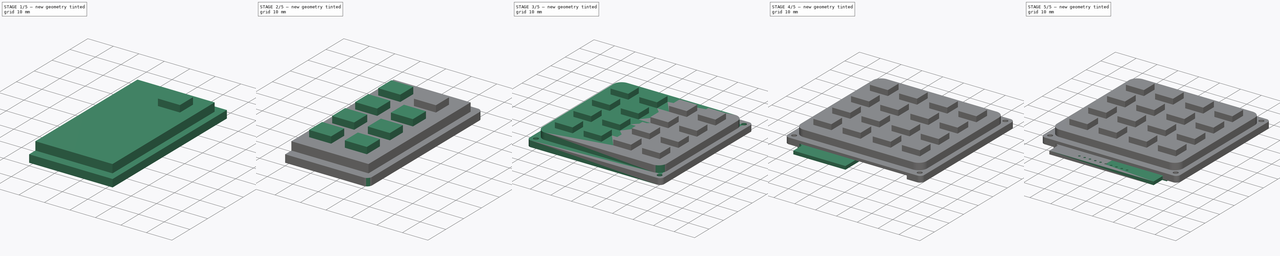
[diagram: build sequence overview — one tinted view per stage of 5, left to right]
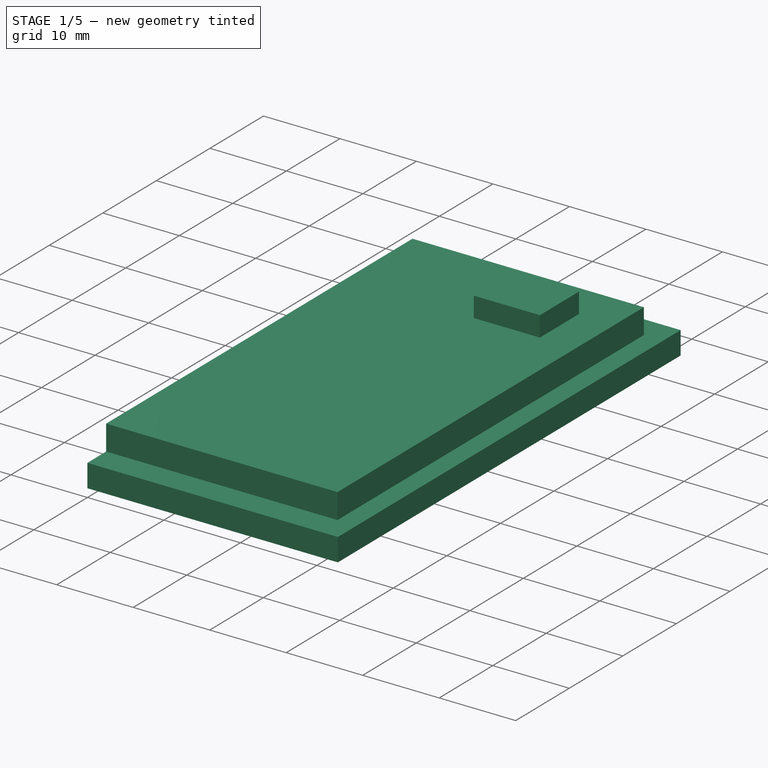
[diagram: stage 1 of 5 — iso view after this stage's code; geometry added in this stage tinted green]
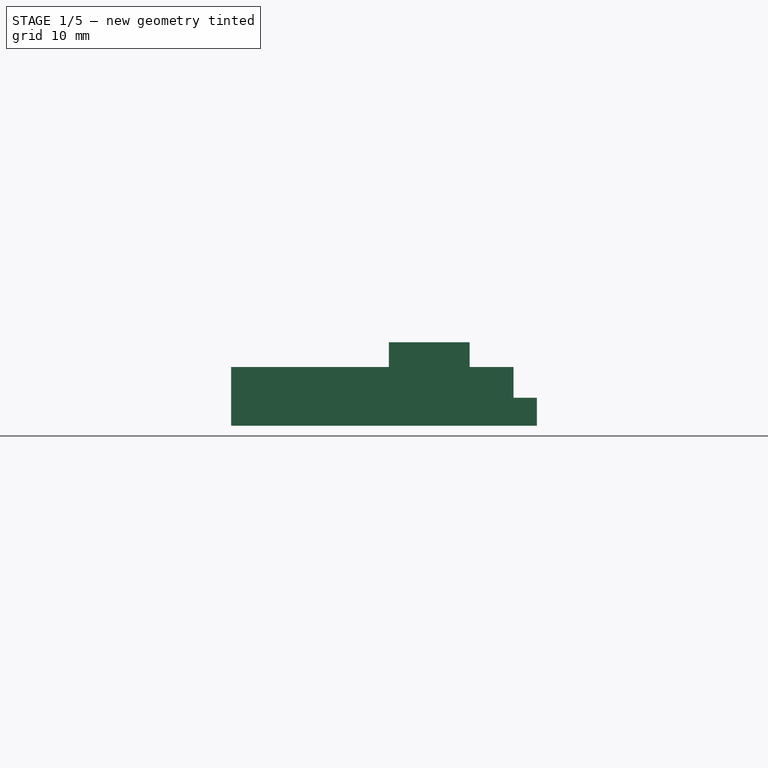
[diagram: stage 1 of 5 — front view after this stage's code; geometry added in this stage tinted green]
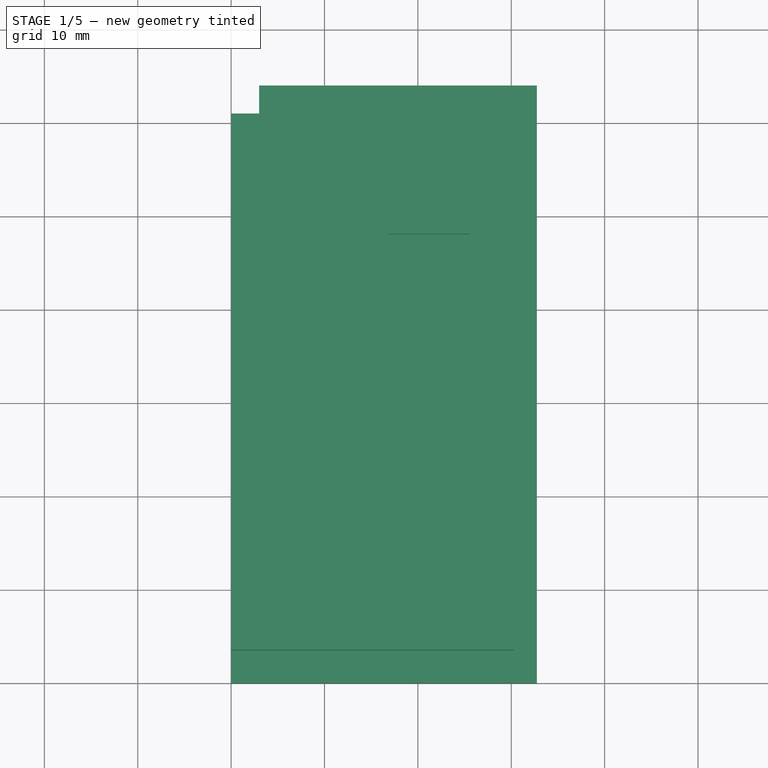
[diagram: stage 1 of 5 — top view after this stage's code; geometry added in this stage tinted green]
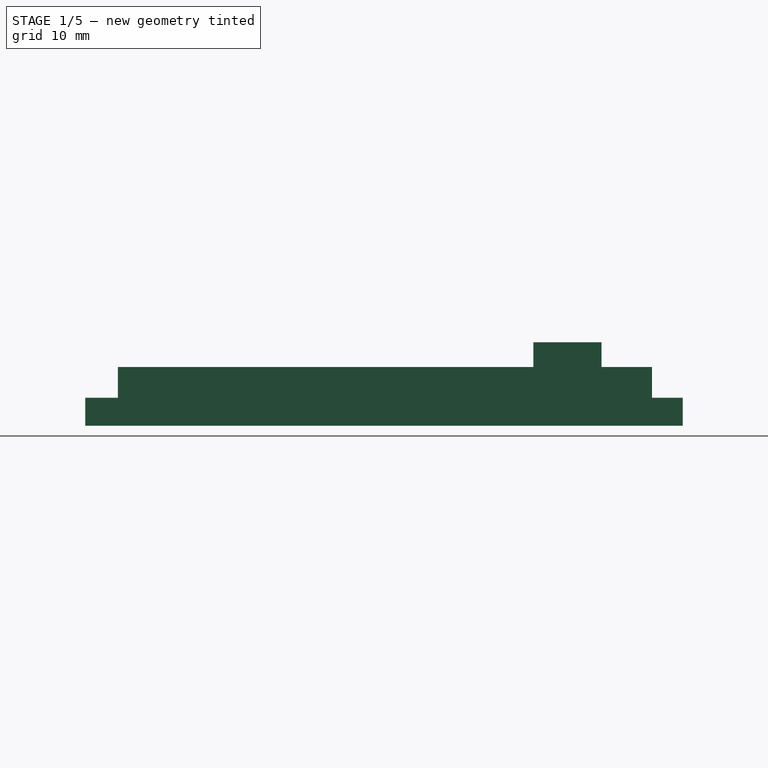
[diagram: stage 1 of 5 — right view after this stage's code; geometry added in this stage tinted green]
FCSTD DOCUMENT  (FreeCAD 1.0R39285 (Git))
Label: keypad
License: All rights reserved
LicenseURL: http://en.wikipedia.org/wiki/All_rights_reserved
objects: Sketcher::SketchObject×7, PartDesign::Pad×4, PartDesign::Fillet×4, PartDesign::LinearPattern×3, PartDesign::Pocket×3, PartDesign::Mirrored×2, PartDesign::Body×2, PartDesign::MultiTransform×1, App::Part×1
note: 61 computed .brp shape members not serialized (recipe doc carries the construction recipe); baked Part::Feature solids carry a one-line shape summary decoded from their .brp

FEATURE [Sketcher::SketchObject] Sketch
  ArcFitTolerance = 1e-06
  AttachmentSupport = -> [XY_Plane]
  FullyConstrained = true
  MakeInternals = false
  MapMode = 5
  sketch-geometry (6):
    g0: LineSegment StartX=0 StartY=0 StartZ=0 EndX=32.75 EndY=0 EndZ=0
    g1: LineSegment StartX=32.75 StartY=0 StartZ=0 EndX=32.75 EndY=64 EndZ=0
    g2: LineSegment StartX=32.75 StartY=64 StartZ=0 EndX=3 EndY=64 EndZ=0
    g3: LineSegment StartX=0 StartY=0 StartZ=0 EndX=0 EndY=61 EndZ=0
    g4: LineSegment StartX=0 StartY=61 StartZ=0 EndX=3 EndY=61 EndZ=0
    g5: LineSegment StartX=3 StartY=61 StartZ=0 EndX=3 EndY=64 EndZ=0
  constraints (17):
    c: Coincident(g0,g1)
    c: Coincident(g1,g2)
    c: Horizontal(g0)
    c: Horizontal(g2)
    c: Vertical(g1)
    c: Coincident(g0,g-1)
    c: DistanceX(g0,g0) = 32.75
    c: Coincident(g3,g0)
    c: PointOnObject(g3,g-2)
    c: Coincident(g4,g3)
    c: Horizontal(g4)
    c: Coincident(g5,g4)
    c: Vertical(g5)
    c: Coincident(g2,g5)
    c: DistanceY(g0,g1) = 64
    c: DistanceY(g5,g5) = 3
    c: DistanceX(g4,g4) = 3
FEATURE [PartDesign::Pad] Pad
  Direction = (0,0,1)
  Length = 3
  Length2 = 10
  Profile = -> Sketch
  ReferenceAxis = -> Sketch [N_Axis]
  Refine = true
  Suppressed = false
  Type = 0
FEATURE [Sketcher::SketchObject] Sketch001
  ArcFitTolerance = 1e-06
  AttachmentSupport = -> [Pad]
  ExternalGeometry = -> [Pad]
  FullyConstrained = true
  MakeInternals = false
  MapMode = 5
  Placement = pos=(0,0,3) rot=(0,0,1;0rad)
  sketch-geometry (2):
    g0: Circle CenterX=30.1 CenterY=61.35 CenterZ=0 NormalX=0 NormalY=0 NormalZ=1 AngleXU=0 Radius=1.15
    g1: Circle CenterX=30.1 CenterY=2.65 CenterZ=0 NormalX=0 NormalY=0 NormalZ=1 AngleXU=0 Radius=1.15
  constraints (6):
    c: Diameter(g0) = 2.3
    c: Equal(g0,g1)
    c: Distance(g0,g-4) = 1.5
    c: Distance(g0,g-3) = 1.5
    c: Distance(g1,g-5) = 1.5
    c: Distance(g1,g-4) = 1.5
FEATURE [Sketcher::SketchObject] Sketch003
  ArcFitTolerance = 1e-06
  AttachmentSupport = -> [Pad]
  ExternalGeometry = -> [Pad]
  FullyConstrained = true
  MakeInternals = false
  MapMode = 5
  Placement = pos=(0,0,3) rot=(0,0,1;0rad)
  sketch-geometry (4):
    g0: LineSegment StartX=0 StartY=3.5 StartZ=0 EndX=30.25 EndY=3.5 EndZ=0
    g1: LineSegment StartX=30.25 StartY=3.5 StartZ=0 EndX=30.25 EndY=60.7 EndZ=0
    g2: LineSegment StartX=30.25 StartY=60.7 StartZ=0 EndX=0 EndY=60.7 EndZ=0
    g3: LineSegment StartX=0 StartY=60.7 StartZ=0 EndX=0 EndY=3.5 EndZ=0
  constraints (12):
    c: Coincident(g0,g1)
    c: Coincident(g1,g2)
    c: Coincident(g2,g3)
    c: Coincident(g3,g0)
    c: Horizontal(g0)
    c: Horizontal(g2)
    c: Vertical(g1)
    c: Vertical(g3)
    c: PointOnObject(g0,g-2)
    c: DistanceY(g1,g-4) = 3.3
    c: DistanceX(g1,g-4) = 2.5
    c: DistanceY(g-5,g0) = 3.5
FEATURE [PartDesign::Pad] Pad001
  BaseFeature = -> Pad
  Direction = (0,0,1)
  Length = 3.3
  Length2 = 10
  Profile = -> Sketch003
  ReferenceAxis = -> Sketch003 [N_Axis]
  Refine = true
  Suppressed = false
  Type = 0
FEATURE [Sketcher::SketchObject] Sketch004
  ArcFitTolerance = 1e-06
  AttachmentSupport = -> [Pad001]
  ExternalGeometry = -> [Pad001]
  FullyConstrained = true
  MakeInternals = false
  MapMode = 5
  Placement = pos=(0,0,6.3) rot=(0,0,1;0rad)
  sketch-geometry (4):
    g0: LineSegment StartX=16.9 StartY=55.3 StartZ=0 EndX=16.9 EndY=48 EndZ=0
    g1: LineSegment StartX=16.9 StartY=48 StartZ=0 EndX=25.55 EndY=48 EndZ=0
    g2: LineSegment StartX=25.55 StartY=48 StartZ=0 EndX=25.55 EndY=55.3 EndZ=0
    g3: LineSegment StartX=25.55 StartY=55.3 StartZ=0 EndX=16.9 EndY=55.3 EndZ=0
  constraints (12):
    c: Coincident(g0,g1)
    c: Coincident(g1,g2)
    c: Coincident(g2,g3)
    c: Coincident(g3,g0)
    c: Vertical(g0)
    c: Vertical(g2)
    c: Horizontal(g1)
    c: Horizontal(g3)
    c: DistanceX(g3,g3) = 8.65
    c: DistanceY(g2,g2) = 7.3
    c: DistanceX(g2,g-4) = 4.7
    c: DistanceY(g2,g-4) = 5.4
FEATURE [PartDesign::Pad] Pad002
  BaseFeature = -> Pad001
  Direction = (0,0,1)
  Length = 2.65
  Length2 = 10
  Profile = -> Sketch004
  ReferenceAxis = -> Sketch004 [N_Axis]
  Refine = true
  Suppressed = false
  Type = 0
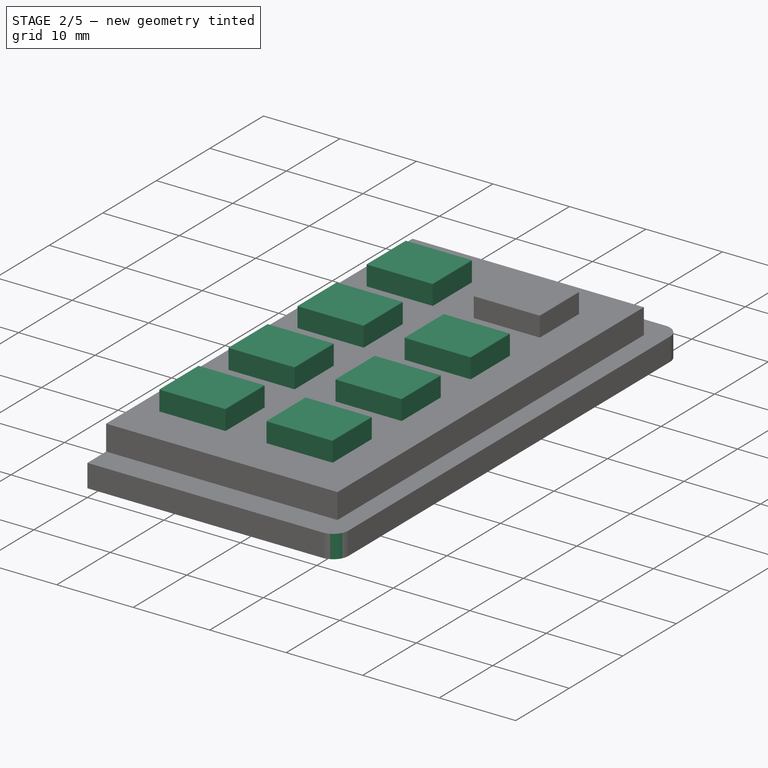
[diagram: stage 2 of 5 — iso view after this stage's code; geometry added in this stage tinted green]
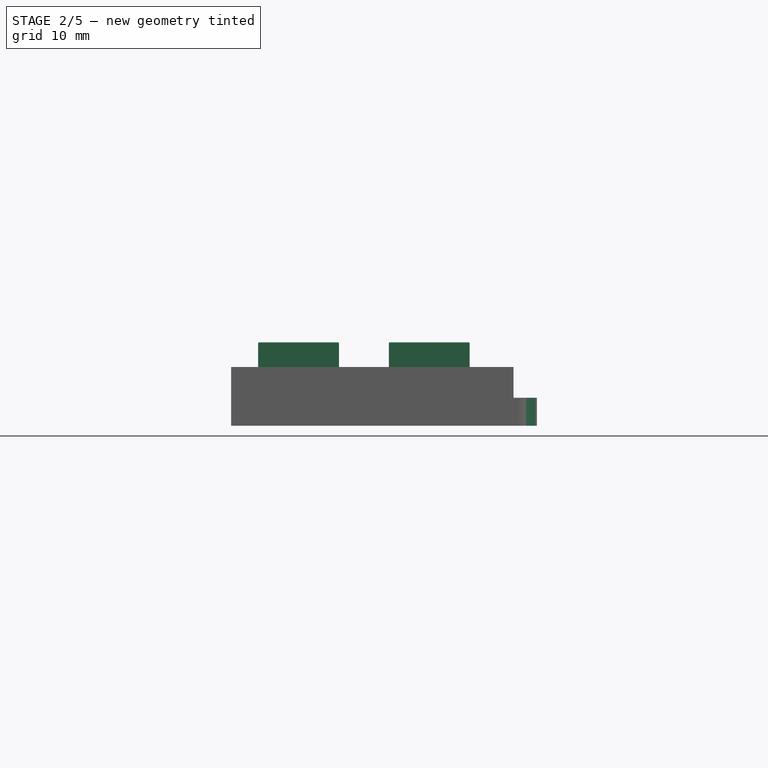
[diagram: stage 2 of 5 — front view after this stage's code; geometry added in this stage tinted green]
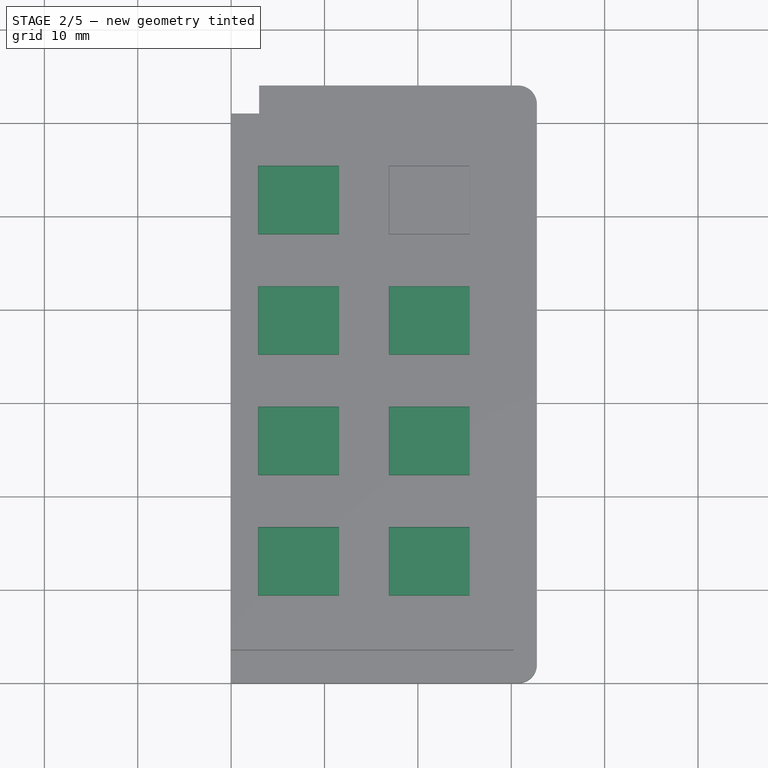
[diagram: stage 2 of 5 — top view after this stage's code; geometry added in this stage tinted green]
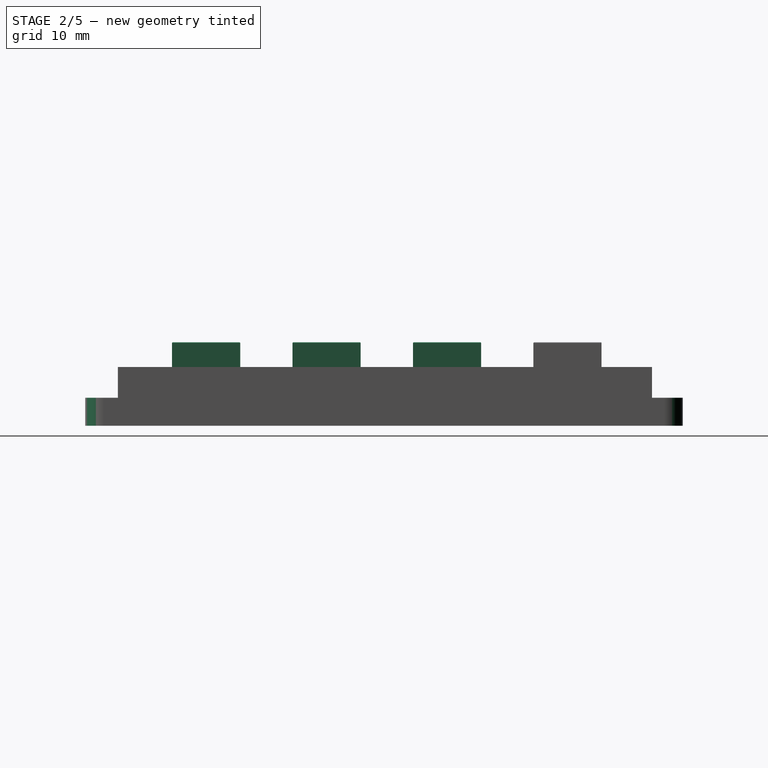
[diagram: stage 2 of 5 — right view after this stage's code; geometry added in this stage tinted green]
FEATURE [PartDesign::Body] Body001  label="pcb"
  AllowCompound = false
  Group = -> [Sketch006,Pad003,Mirrored001,Sketch007,Pocket002,LinearPattern002]
  Origin = -> Origin001
  Tip = -> LinearPattern002
FEATURE [PartDesign::Fillet] Fillet002
  Base = -> Pad002 [Edge37,Edge39,Edge42,Edge41]
  BaseFeature = -> Pad002
  Radius = 0.1
  Refine = true
  SupportTransform = false
  Suppressed = false
  UseAllEdges = false
FEATURE [PartDesign::MultiTransform] MultiTransform
  BaseFeature = -> Fillet002
  Originals = -> [Pad002,Fillet002]
  Refine = true
  Suppressed = false
  TransformMode = 0
  Transformations = -> [LinearPattern,LinearPattern001]
FEATURE [PartDesign::Fillet] Fillet
  Base = -> MultiTransform [Edge190,Edge126]
  BaseFeature = -> MultiTransform
  Radius = 2
  Refine = true
  SupportTransform = false
  Suppressed = false
  UseAllEdges = false
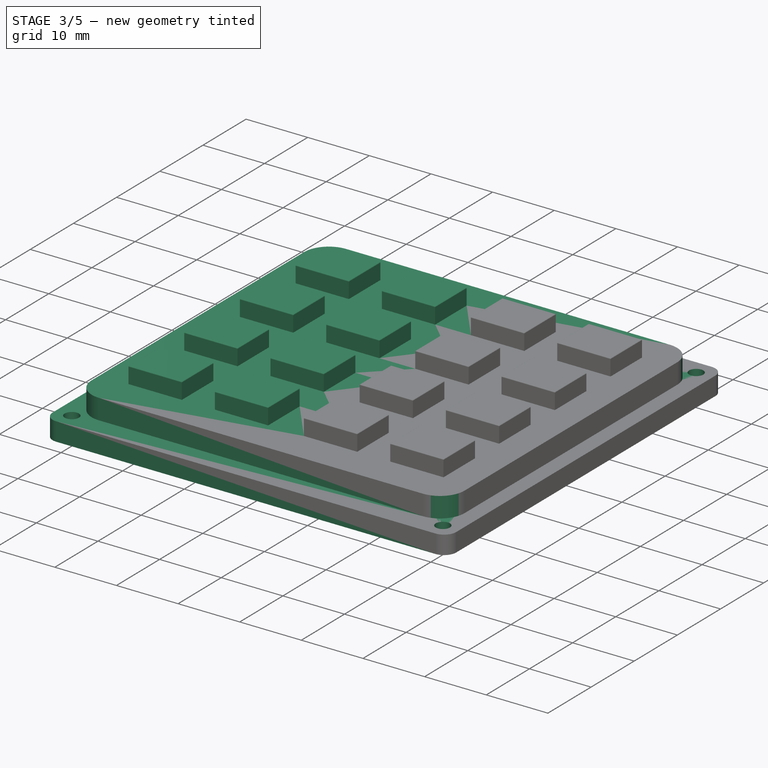
[diagram: stage 3 of 5 — iso view after this stage's code; geometry added in this stage tinted green]
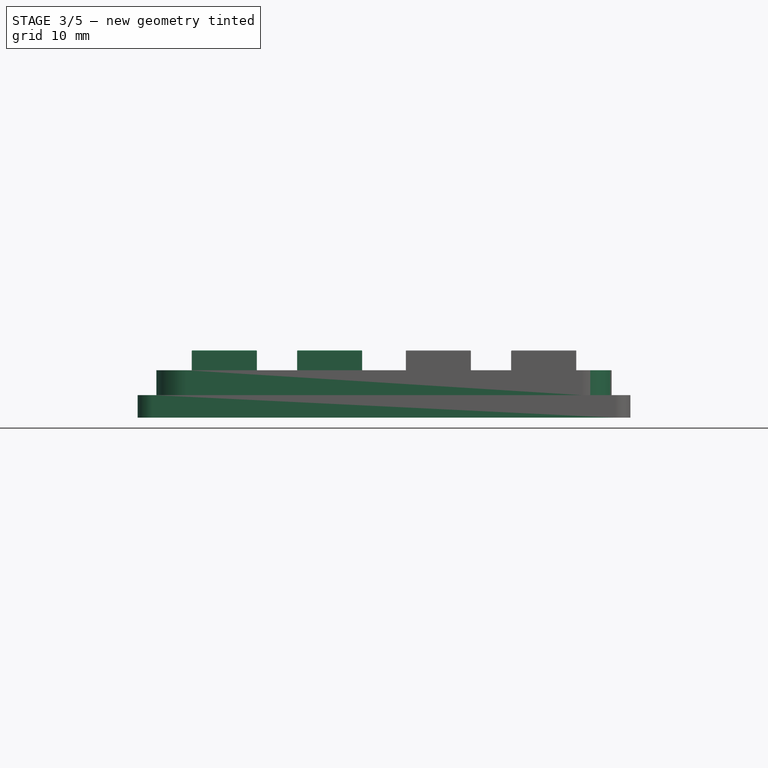
[diagram: stage 3 of 5 — front view after this stage's code; geometry added in this stage tinted green]
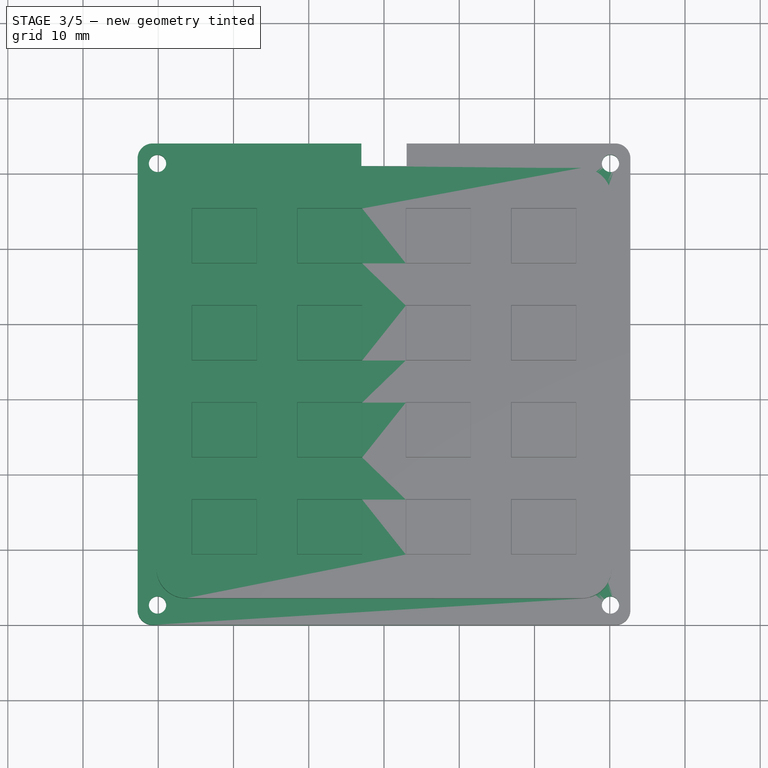
[diagram: stage 3 of 5 — top view after this stage's code; geometry added in this stage tinted green]
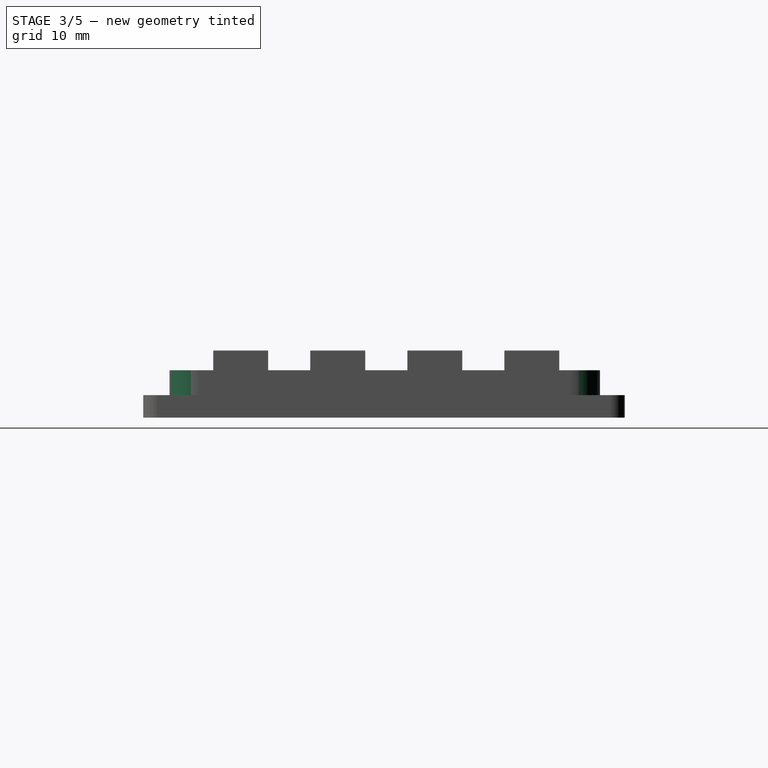
[diagram: stage 3 of 5 — right view after this stage's code; geometry added in this stage tinted green]
FEATURE [PartDesign::Fillet] Fillet001
  Base = -> Fillet [Edge32,Edge34]
  BaseFeature = -> Fillet
  Radius = 4
  Refine = true
  SupportTransform = false
  Suppressed = false
  UseAllEdges = false
FEATURE [PartDesign::Pocket] Pocket
  BaseFeature = -> Fillet001
  Direction = (0,0,-1)
  Length = 3
  Length2 = 5
  Profile = -> Sketch001
  ReferenceAxis = -> Sketch001 [N_Axis]
  Refine = true
  Suppressed = false
  Type = 0
FEATURE [PartDesign::Mirrored] Mirrored
  BaseFeature = -> Pocket
  MirrorPlane = -> YZ_Plane
  Refine = true
  Suppressed = false
  TransformMode = 1
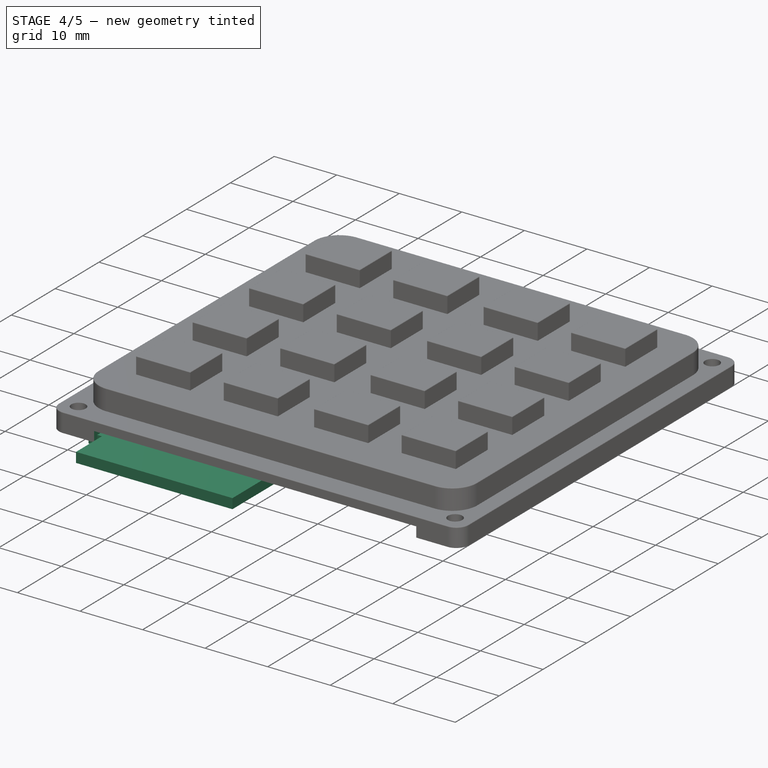
[diagram: stage 4 of 5 — iso view after this stage's code; geometry added in this stage tinted green]
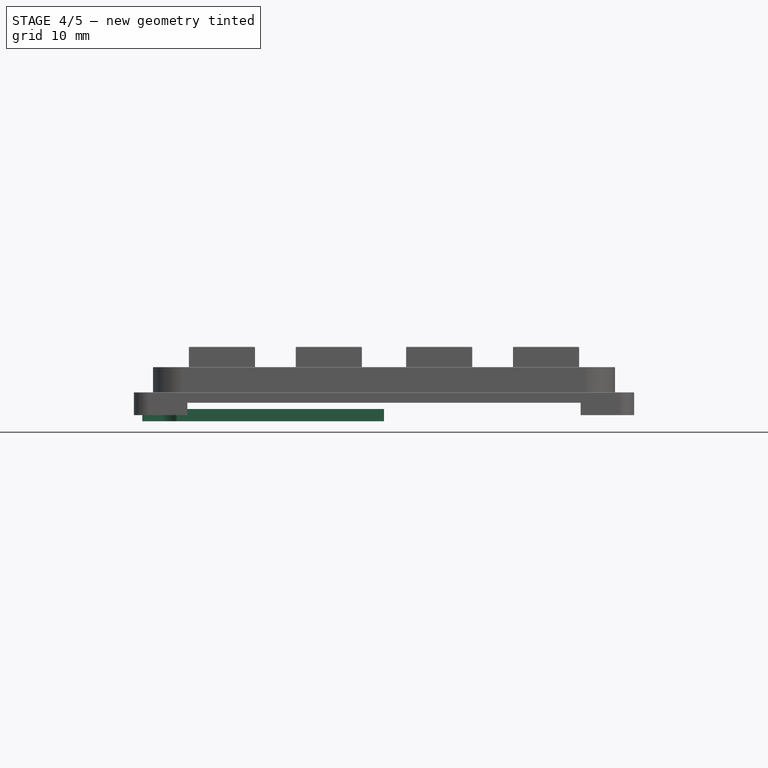
[diagram: stage 4 of 5 — front view after this stage's code; geometry added in this stage tinted green]
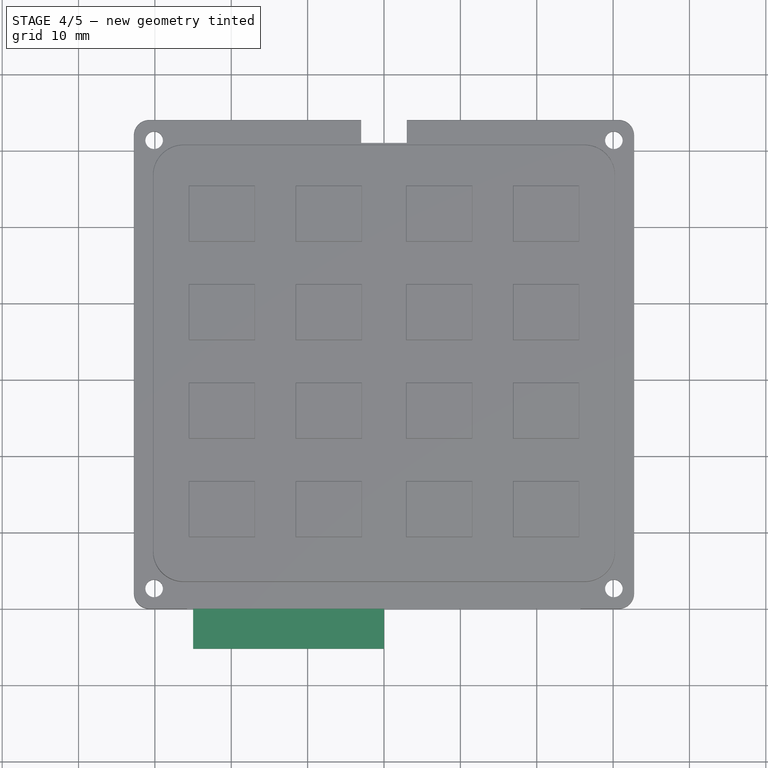
[diagram: stage 4 of 5 — top view after this stage's code; geometry added in this stage tinted green]
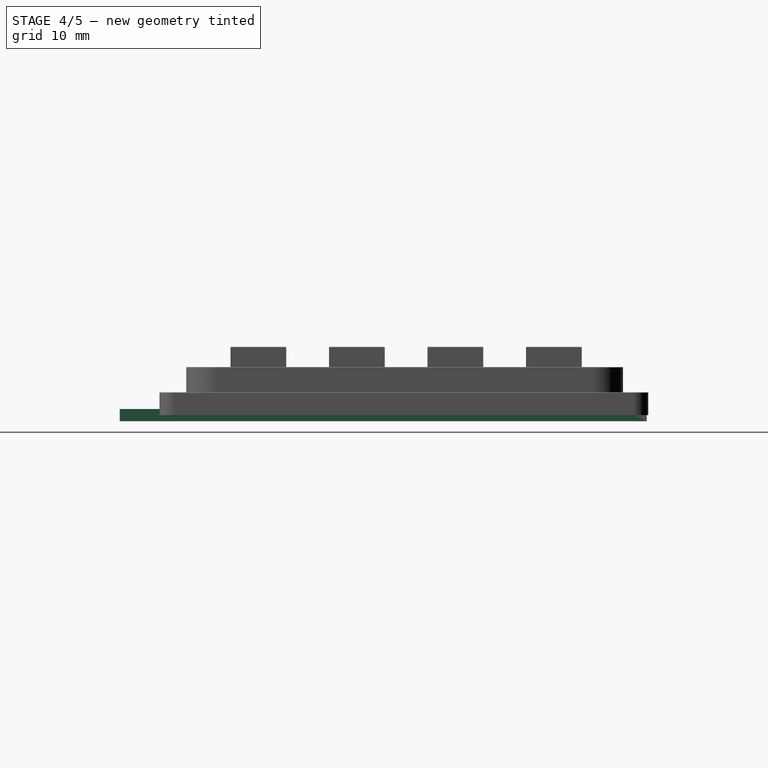
[diagram: stage 4 of 5 — right view after this stage's code; geometry added in this stage tinted green]
FEATURE [PartDesign::LinearPattern] LinearPattern
  Direction = -> Y_Axis
  Length = 38.7
  Mode = 1
  Occurrences = 4
  Offset = 12.9
  Refine = true
  Reversed = true
  Suppressed = false
  TransformMode = 0
FEATURE [PartDesign::LinearPattern] LinearPattern001
  Direction = -> X_Axis
  Length = 14
  Mode = 1
  Occurrences = 2
  Offset = 14
  Refine = true
  Reversed = true
  Suppressed = false
  TransformMode = 0
FEATURE [Sketcher::SketchObject] Sketch006
  ArcFitTolerance = 1e-06
  AttachmentSupport = -> [XY_Plane001]
  FullyConstrained = true
  MakeInternals = false
  MapMode = 5
  sketch-geometry (16):
    g0: LineSegment StartX=0 StartY=60.8 StartZ=0 EndX=-3 EndY=60.8 EndZ=0
    g1: LineSegment StartX=-3 StartY=60.8 StartZ=0 EndX=-3 EndY=63.8 EndZ=0
    g2: LineSegment StartX=-3 StartY=63.8 StartZ=0 EndX=-25 EndY=63.8 EndZ=0
    g3: LineSegment StartX=-25 StartY=63.8 StartZ=0 EndX=-25 EndY=62.9 EndZ=0
    g4: LineSegment StartX=-25 StartY=62.9 StartZ=0 EndX=-27.15 EndY=62.9 EndZ=0
    g5: LineSegment StartX=-27.15 StartY=62.9 StartZ=0 EndX=-27.15 EndY=61.6 EndZ=0
    g6: ArcOfCircle CenterX=-29.15 CenterY=61.6 CenterZ=0 NormalX=0 NormalY=0 NormalZ=1 AngleXU=0 Radius=2 StartAngle=4.71239 EndAngle=6.28319
    g7: LineSegment StartX=-29.15 StartY=59.6 StartZ=0 EndX=-31.65 EndY=59.6 EndZ=0
    g8: LineSegment StartX=-31.65 StartY=59.6 StartZ=0 EndX=-31.65 EndY=4 EndZ=0
    g9: LineSegment StartX=-31.65 StartY=4 StartZ=0 EndX=-29.15 EndY=4 EndZ=0
    g10: ArcOfCircle CenterX=-29.15 CenterY=2 CenterZ=0 NormalX=0 NormalY=0 NormalZ=1 AngleXU=0 Radius=2 StartAngle=1e-16 EndAngle=1.5708
    g11: LineSegment StartX=-27.15 StartY=2 StartZ=0 EndX=-27.15 EndY=0.7 EndZ=0
    g12: LineSegment StartX=-27.15 StartY=0.7 StartZ=0 EndX=-25 EndY=0.7 EndZ=0
    g13: LineSegment StartX=-25 StartY=0.7 StartZ=0 EndX=-25 EndY=-5.2 EndZ=0
    g14: LineSegment StartX=-25 StartY=-5.2 StartZ=0 EndX=0 EndY=-5.2 EndZ=0
    g15: LineSegment StartX=0 StartY=-5.2 StartZ=0 EndX=0 EndY=60.8 EndZ=0
  constraints (46):
    c: PointOnObject(g0,g-2)
    c: Horizontal(g0)
    c: Coincident(g1,g0)
    c: Vertical(g1)
    c: Coincident(g1,g2)
    c: Horizontal(g2)
    c: Coincident(g2,g3)
    c: Vertical(g3)
    c: Coincident(g3,g4)
    c: Horizontal(g4)
    c: Coincident(g4,g5)
    c: Vertical(g5)
    c: Tangent(g5,g6) = 1.5708
    c: Horizontal(g7)
    c: Coincident(g7,g8)
    c: Vertical(g8)
    c: Coincident(g8,g9)
    c: Horizontal(g9)
    c: Tangent(g9,g10) = 1.5708
    c: Vertical(g11)
    c: Coincident(g11,g12)
    c: Horizontal(g12)
    c: Coincident(g12,g13)
    c: Vertical(g13)
    c: Coincident(g13,g14)
    c: PointOnObject(g14,g-2)
    c: Horizontal(g14)
    c: Coincident(g14,g15)
    c: Coincident(g15,g0)
    c: DistanceX(g14,g14) = 25
    c: DistanceY(g13,g2) = 69
    c: DistanceX(g0,g0) = 3
    c: DistanceY(g1,g1) = 3
    c: DistanceY(g3,g3) = 0.9
    c: DistanceY(g7,g2) = 4.2
    c: Tangent(g6,g7) = 1.5708
    c: DistanceX(g7,g4) = 4.5
    c: DistanceX(g8,g14) = 31.65
    c: Equal(g4,g12)
    c: Tangent(g10,g11) = 1.5708
    c: Equal(g11,g5)
    c: Equal(g9,g7)
    c: Radius(g6) = 2
    c: Equal(g6,g10)
    c: DistanceY(g13,g13) = 5.9
    c: DistanceY(g14,g-1) = 5.2
FEATURE [PartDesign::Pad] Pad003
  Direction = (0,0,1)
  Length = 1.6
  Length2 = 10
  Midplane = true
  Profile = -> Sketch006
  ReferenceAxis = -> Sketch006 [N_Axis]
  Refine = true
  Suppressed = false
  Type = 0
FEATURE [Sketcher::SketchObject] Sketch005
  ArcFitTolerance = 1e-06
  AttachmentSupport = -> [Mirrored]
  FullyConstrained = true
  MakeInternals = false
  MapMode = 5
  Placement = pos=(0,1.8e-15,0) rot=(1,0,0;1.5708rad)
  sketch-geometry (4):
    g0: LineSegment StartX=-25.75 StartY=0 StartZ=0 EndX=25.75 EndY=0 EndZ=0
    g1: LineSegment StartX=25.75 StartY=0 StartZ=0 EndX=25.75 EndY=1.62 EndZ=0
    g2: LineSegment StartX=25.75 StartY=1.62 StartZ=0 EndX=-25.75 EndY=1.62 EndZ=0
    g3: LineSegment StartX=-25.75 StartY=1.62 StartZ=0 EndX=-25.75 EndY=0 EndZ=0
  constraints (11):
    c: Coincident(g0,g1)
    c: Coincident(g1,g2)
    c: Coincident(g2,g3)
    c: Coincident(g3,g0)
    c: Horizontal(g0)
    c: Horizontal(g2)
    c: Vertical(g1)
    c: Vertical(g3)
    c: Symmetric(g0,g0,g-1)
    c: DistanceX(g0,g0) = 51.5
    c: DistanceY(g3,g3) = 1.62
FEATURE [PartDesign::Pocket] Pocket001
  BaseFeature = -> Mirrored
  Direction = (0,1,-2e-16)
  Length = 5
  Length2 = 5
  Profile = -> Sketch005
  ReferenceAxis = -> Sketch005 [N_Axis]
  Refine = true
  Suppressed = false
  Type = 1
FEATURE [PartDesign::Fillet] Fillet003
  Base = -> Pocket001 [Edge70,Edge73,Edge75,Edge69,Edge67,Edge77,Edge78,Edge65,Edge14,Edge17,Edge18,Edge3,Edge25,Edge24,Edge23,Edge22,Edge21,Edge20,Edge19]
  BaseFeature = -> Pocket001
  Radius = 0.1
  Refine = true
  SupportTransform = false
  Suppressed = false
  UseAllEdges = false
FEATURE [PartDesign::Body] Body  label="plastic"
  AllowCompound = false
  Group = -> [Sketch,Pad,Sketch001,Sketch003,Pad001,Sketch004,Pad002,Fillet002,MultiTransform,LinearPattern,LinearPattern001,Fillet,Fillet001,Pocket,Mirrored,Sketch005,Pocket001,Fillet003]
  Origin = -> Origin
  Tip = -> Fillet003
FEATURE [App::Part] Part  label="keypad"
  Group = -> [Body,Body001]
  Origin = -> Origin002
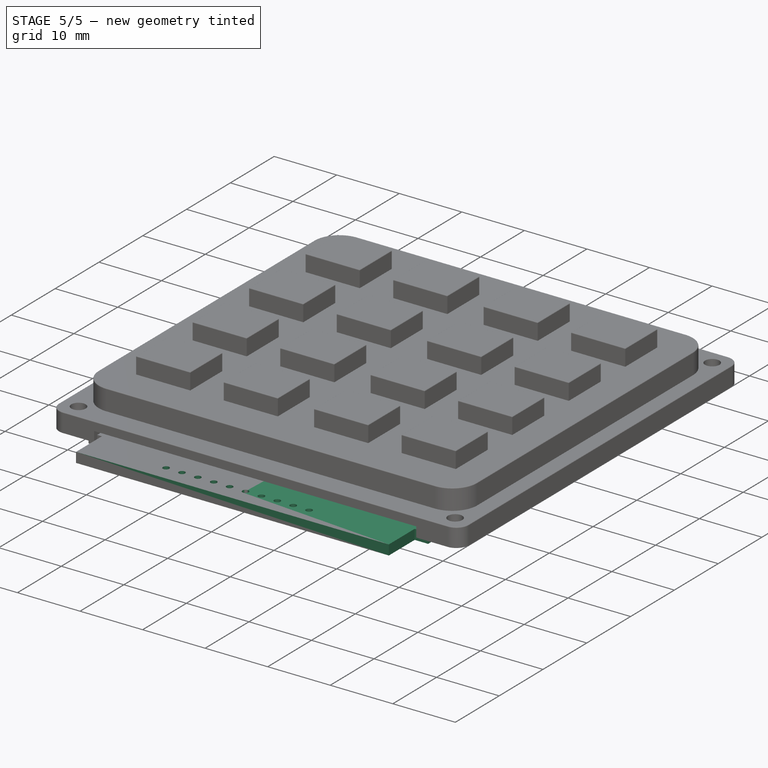
[diagram: stage 5 of 5 — iso view after this stage's code; geometry added in this stage tinted green]
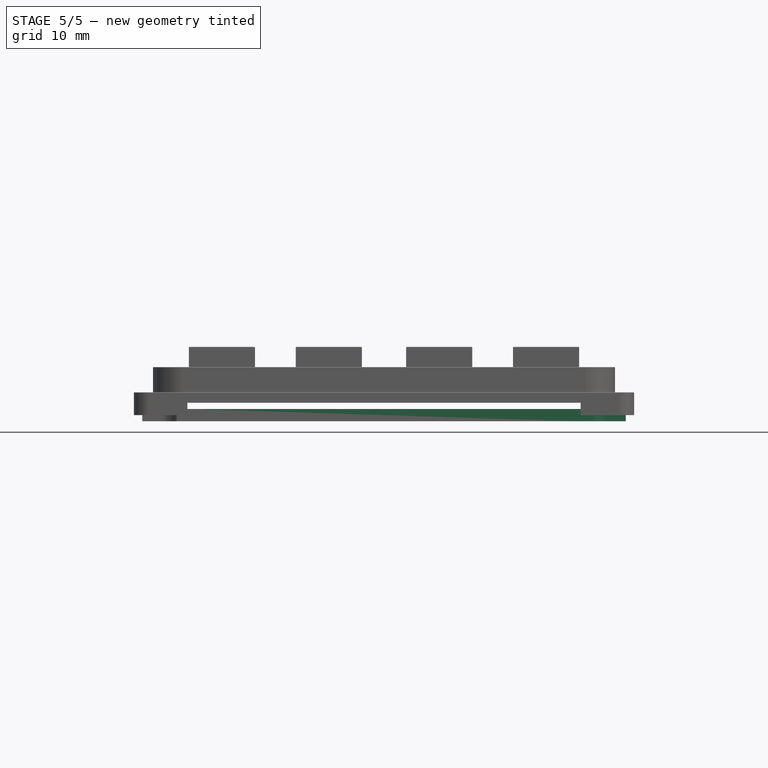
[diagram: stage 5 of 5 — front view after this stage's code; geometry added in this stage tinted green]
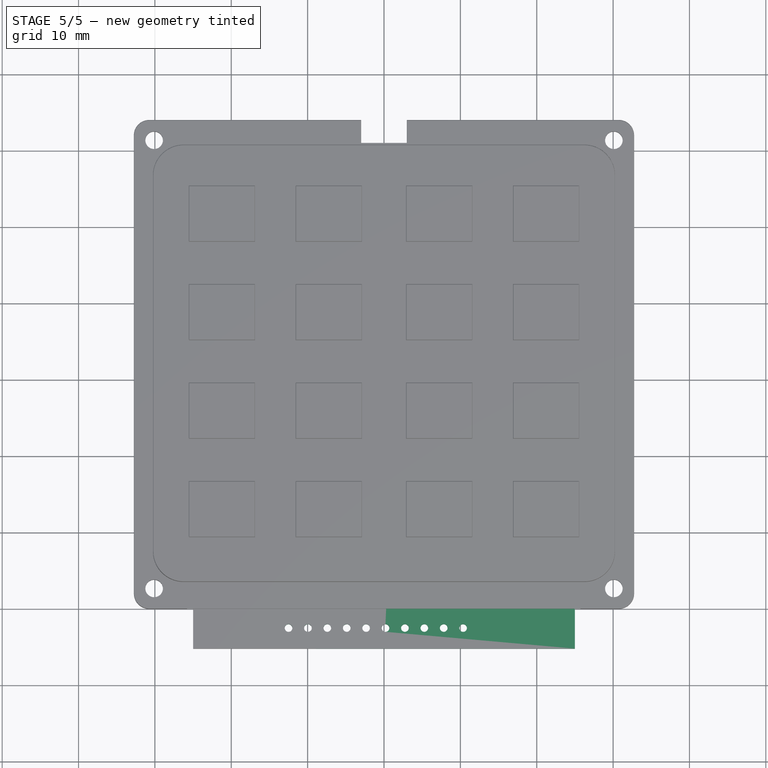
[diagram: stage 5 of 5 — top view after this stage's code; geometry added in this stage tinted green]
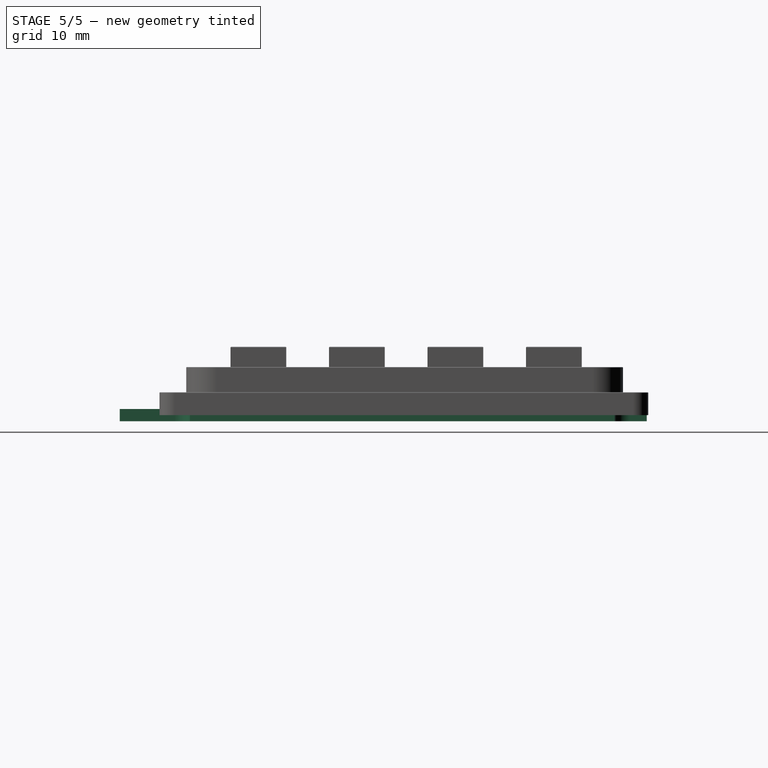
[diagram: stage 5 of 5 — right view after this stage's code; geometry added in this stage tinted green]
FEATURE [PartDesign::Mirrored] Mirrored001
  BaseFeature = -> Pad003
  MirrorPlane = -> YZ_Plane001
  Refine = true
  Suppressed = false
  TransformMode = 1
FEATURE [Sketcher::SketchObject] Sketch007
  ArcFitTolerance = 1e-06
  AttachmentSupport = -> [Mirrored001]
  ExternalGeometry = -> [Mirrored001]
  FullyConstrained = true
  MakeInternals = false
  MapMode = 5
  Placement = pos=(0,0,0.8) rot=(0,0,1;0rad)
  sketch-geometry (1):
    g0: Circle CenterX=-12.5 CenterY=-2.5 CenterZ=0 NormalX=0 NormalY=0 NormalZ=1 AngleXU=0 Radius=0.5
  constraints (3):
    c: Diameter(g0) = 1
    c: Distance(g0,g-4) = 2.2
    c: DistanceX(g-4,g0) = 12.5
FEATURE [PartDesign::Pocket] Pocket002
  BaseFeature = -> Mirrored001
  Direction = (0,0,-1)
  Length = 5
  Length2 = 5
  Profile = -> Sketch007
  ReferenceAxis = -> Sketch007 [N_Axis]
  Refine = true
  Suppressed = false
  Type = 1
FEATURE [PartDesign::LinearPattern] LinearPattern002
  BaseFeature = -> Pocket002
  Direction = -> Sketch007 [H_Axis]
  Length = 22.86
  Mode = 1
  Occurrences = 10
  Offset = 2.54
  Originals = -> [Pocket002]
  Refine = true
  Suppressed = false
  TransformMode = 0
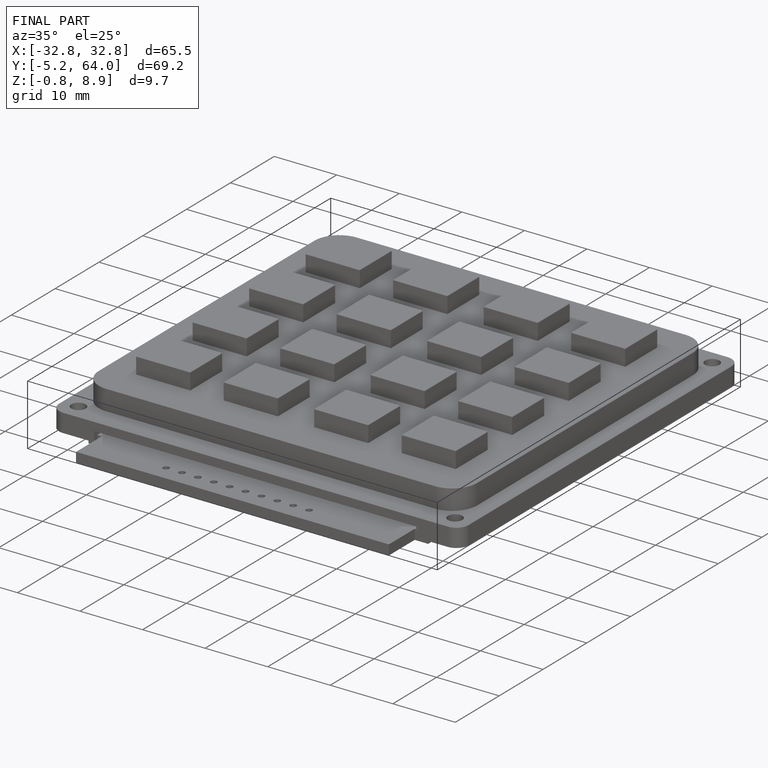
[diagram: finished part — iso view with bounding-box wireframe]
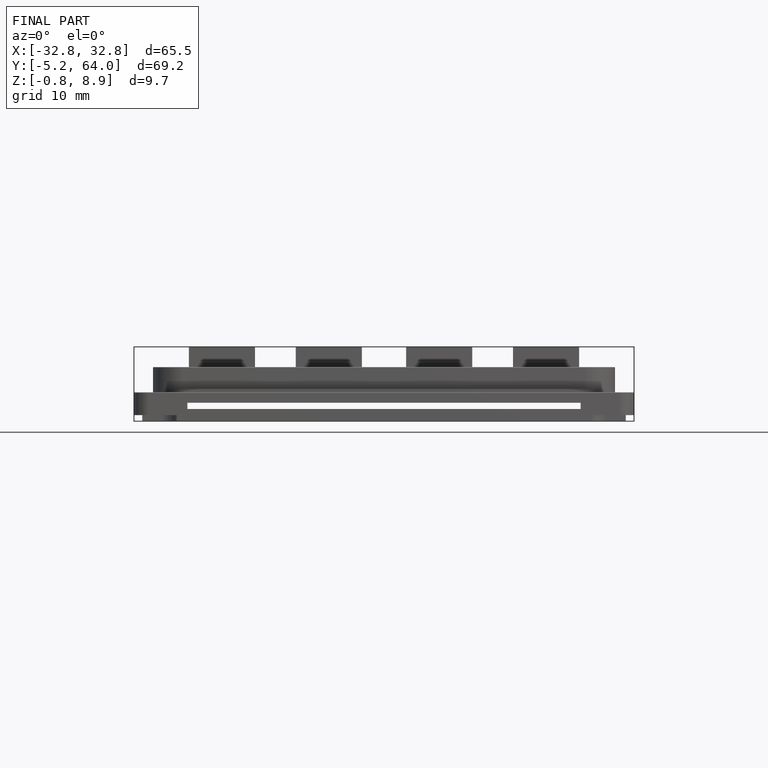
[diagram: finished part — front view with bounding-box wireframe]
